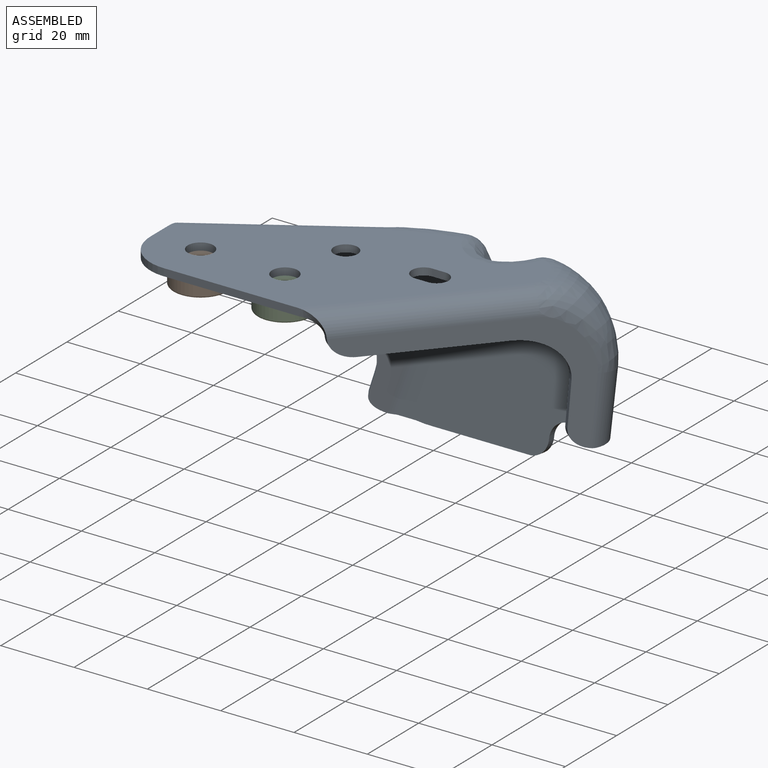
[diagram: assembled view]
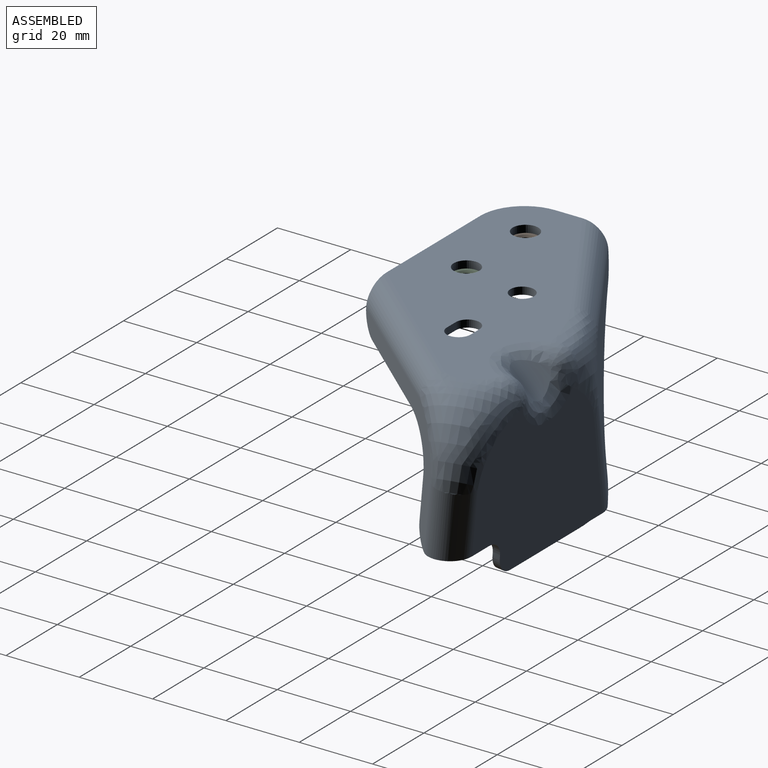
[diagram: assembled view, second angle]
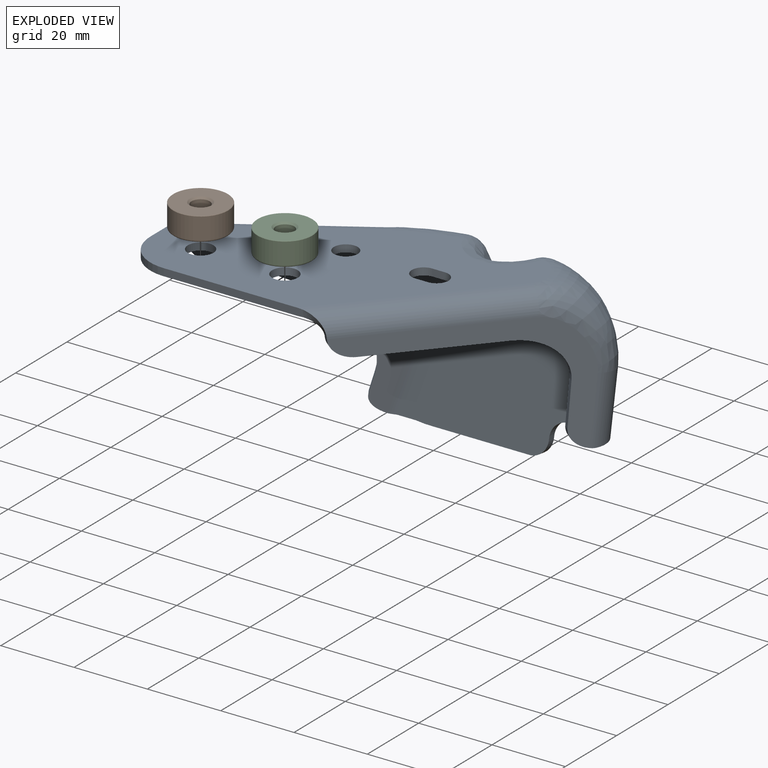
[diagram: exploded view]
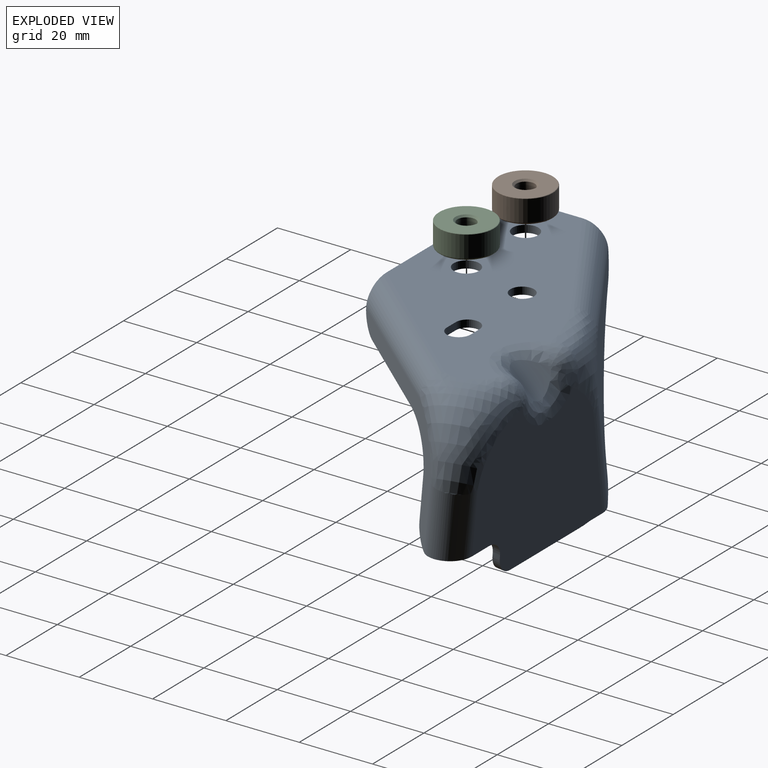
[diagram: exploded view, second angle]
ASSEMBLY  parts=3 mates=2
PART A: 73 faces, bbox 112.8x69.9x58.5 mm
  f0: cylinder r=1.72mm len=1.51mm, axis (-0.75,0.66,-0.07), area 0.1mm2, adj f1,f2,f3,f4
  f1: extruded ~6.31x6.2mm, area 18.6mm2, adj f0,f5,f6,f7
  f2: cylinder r=6mm len=44.8mm, axis (-0.66,-0.75,0), area 463.7mm2, adj f0,f4,f5,f8,f9
  f3: cylinder r=4mm len=43.49mm, axis (-0.66,-0.75,0), area 309.2mm2, adj f0,f4,f6,f10,f11
  f4: bspline ~7.94x5.77mm, area 18.8mm2, adj f0,f2,f3,f12
  f5: plane 48.33x43.21mm, normal (0.75,-0.66,0.05), area 441.9mm2, adj f1,f2,f7,f8,f13,f14,f15,f16
  f6: offset ~61.76x54.59mm, area 442.1mm2, adj f1,f3,f7,f10,f14,f15,f16,f57
  f7: plane 28.17x24.86mm, normal (0.04,-0.03,-1), area 71.2mm2, adj f1,f5,f6,f16
  f8: bspline ~28.09x24.04mm, area 585.8mm2, adj f2,f5,f9,f13,f32,f33
  f9: plane 86.9x53.99mm, normal (0,0,1), area 2458.5mm2, adj f2,f8,f12,f17,f20,f24,f25,f26
  f10: offset ~32.17x28.63mm, area 401.3mm2, adj f3,f6,f11,f19,f56,f57
  f11: plane 86.68x53.78mm, normal (0,0,-1), area 2458.8mm2, adj f3,f10,f12,f17,f18,f19,f20,f23
  f12: plane 36.61x2mm, normal (0,-1,0), area 73.2mm2, adj f4,f9,f11,f25
  f13: cylinder r=6mm len=18.98mm, axis (-0.04,-0.12,-0.99), area 242.3mm2, adj f5,f8,f32,f58,f59
  f14: extruded ~5.44x5.04mm, area 16.1mm2, adj f5,f6,f15,f58
  f15: plane 11.54x2.51mm, normal (-0.66,-0.75,0.09), area 23mm2, adj f5,f6,f14,f16
  f16: extruded ~11.31x11.15mm, area 39.3mm2, adj f5,f6,f7,f15
  f17: plane 3.5x2mm, normal (0,-1,0), area 7mm2, adj f9,f11,f20,f29
  f18: bspline ~10.45x9.14mm, area 43.1mm2, adj f11,f23,f52,f53
  f19: cylinder r=4mm len=4.49mm, axis (-1,0,0), area 0.4mm2, adj f10,f11,f22,f56
  f20: cylinder r=3.25mm len=6.5mm, axis (0,0,1), area 20.4mm2, adj f9,f11,f17,f30
  f21: offset ~15.79x15.79mm, area 48.2mm2, adj f23,f53,f55
  f22: sphere r=4mm, area 12.4mm2, adj f19,f23,f55
  f23: bspline ~10.93x9.96mm, area 47.6mm2, adj f11,f18,f21,f22
  f24: plane 7.42x2mm, normal (-1,0,0), area 14.8mm2, adj f9,f11,f25,f47
  f25: cylinder r=12mm len=12mm, axis (0,0,1), area 37.7mm2, adj f9,f11,f12,f24
  f26: cylinder r=3.5mm len=7mm, axis (0,0,-1), area 44mm2, adj f9,f11
  f27: cylinder r=3.5mm len=7mm, axis (0,0,-1), area 44mm2, adj f9,f11
  f28: cylinder r=3.25mm len=6.5mm, axis (0,0,-1), area 40.8mm2, adj f9,f11
  f29: cylinder r=3.25mm len=6.5mm, axis (0,0,1), area 20.4mm2, adj f9,f11,f17,f30
  f30: plane 3.5x2mm, normal (0,1,0), area 7mm2, adj f9,f11,f20,f29
  f31: bspline ~9.47x8.82mm, area 51.1mm2, adj f32,f35,f36,f41
  f32: plane 53.45x41.99mm, normal (0,0.99,-0.12), area 1651.8mm2, adj f8,f13,f31,f33,f35,f42,f43,f60
  f33: cylinder r=6mm len=6.73mm, axis (-1,0,0), area 0.5mm2, adj f8,f9,f32,f34
  f34: sphere r=6mm, area 34.8mm2, adj f33,f35,f37
  f35: bspline ~10.93x10.54mm, area 67.7mm2, adj f31,f32,f34,f36
  f36: cylinder r=7mm len=11.67mm, axis (0,0.71,-0.71), area 97mm2, adj f31,f35,f37,f38,f39,f41
  f37: bspline ~10.93x10.73mm, area 66.1mm2, adj f9,f34,f36,f38
  f38: bspline ~10.45x9.98mm, area 59.7mm2, adj f9,f36,f37,f39
  f39: bspline ~5.72x3.86mm, area 12.6mm2, adj f36,f38,f40,f42
  f40: bspline ~6.25x5.06mm, area 13.3mm2, adj f39,f41,f42
  f41: bspline ~6.62x6.41mm, area 29.3mm2, adj f31,f36,f40,f42
  f42: bspline ~27.07x25.34mm, area 366.7mm2, adj f9,f32,f39,f40,f41,f43,f44,f45
  f43: cylinder r=6mm len=29.05mm, axis (0.28,0.12,0.95), area 101.9mm2, adj f32,f42,f44,f66
  f44: plane 45.4x42.29mm, normal (-0.53,0.85,0.05), area 764.7mm2, adj f42,f43,f45,f69,f70,f71,f72
  f45: cylinder r=6mm len=42.91mm, axis (-0.85,-0.53,0), area 405.5mm2, adj f9,f42,f44,f46,f47
  f46: cylinder r=0.68mm len=1.69mm, axis (-0.53,0.85,0.06), area 0mm2, adj f45,f47,f48,f69
  f47: bspline ~7.06x5.78mm, area 17.2mm2, adj f24,f45,f46,f48
  f48: cylinder r=4mm len=41.85mm, axis (-0.85,-0.53,0), area 270.3mm2, adj f11,f46,f47,f49,f68
  f49: offset ~31.21x29.53mm, area 279.5mm2, adj f11,f48,f50,f51,f52,f56,f67,f68
  f50: bspline ~5.21x4.94mm, area 17.8mm2, adj f49,f51,f53,f54
  f51: offset ~10.21x9.16mm, area 5.2mm2, adj f49,f50,f52
  f52: bspline ~3.95x2.72mm, area 6.4mm2, adj f18,f49,f51,f53
  f53: offset ~15.66x15.66mm, area 62.1mm2, adj f18,f21,f50,f52,f54
  f54: bspline ~9.42x7.52mm, area 37.4mm2, adj f50,f53,f55,f56
  f55: bspline ~10.93x9.53mm, area 49.3mm2, adj f21,f22,f54,f56
  f56: offset ~67.97x54.3mm, area 1651.5mm2, adj f10,f19,f49,f54,f55,f57,f60,f61
  f57: cylinder r=4mm len=18.62mm, axis (-0.04,-0.12,-0.99), area 161.6mm2, adj f6,f10,f56,f58,f59
  f58: bspline ~2.42x2.23mm, area 2.7mm2, adj f13,f14,f57,f59
  f59: bspline ~8.65x6mm, area 20.3mm2, adj f13,f57,f58,f60
  f60: bspline ~6.79x1.99mm, area 13.6mm2, adj f32,f56,f59,f61
  f61: extruded ~5.24x5mm, area 15.8mm2, adj f32,f56,f60,f62
  f62: extruded ~5.24x5mm, area 15.8mm2, adj f32,f56,f61,f63
  f63: plane 26.23x1.99mm, normal (0,-0.12,-0.99), area 52.5mm2, adj f32,f56,f62,f64
  f64: extruded ~4.77x2.02mm, area 9.6mm2, adj f32,f56,f63,f65
  f65: plane 4.86x1.99mm, normal (0,-0.12,-0.99), area 9.7mm2, adj f32,f56,f64,f66
  f66: bspline ~3.37x2.66mm, area 6mm2, adj f43,f65,f67,f72
  f67: cylinder r=4mm len=28.7mm, axis (0.28,0.12,0.95), area 67.9mm2, adj f49,f56,f66,f68
  f68: offset ~60.33x54.75mm, area 750.9mm2, adj f48,f49,f67,f69,f70,f71,f72
  f69: extruded ~6.06x5.51mm, area 17.7mm2, adj f44,f46,f68,f70
  f70: extruded ~31.21x27.28mm, area 101.1mm2, adj f44,f68,f69,f71
  f71: plane 4.97x2.36mm, normal (-0.81,-0.52,0.27), area 10.1mm2, adj f44,f68,f70,f72
  f72: extruded ~4.96x4.65mm, area 14.3mm2, adj f44,f66,f68,f71
PART B: 14 faces, bbox 6.5x15x15 mm
  f0: revolved ~5.63x4.44mm, area 6.1mm2, adj f1,f3,f4
  f1: revolved ~5.63x4.44mm, area 6.1mm2, adj f0,f2,f4
  f2: cylinder r=2.5mm len=5.5mm, axis (1,0,0), area 43.2mm2, adj f1,f3,f6
  f3: cylinder r=2.5mm len=5.5mm, axis (1,0,0), area 43.2mm2, adj f0,f2,f7
  f4: plane 14.03x14.03mm, normal (-1,0,0), area 125.7mm2, adj f0,f1,f5,f8
  f5: revolved ~14.08x11.1mm, area 18.1mm2, adj f4,f8,f9
  f6: revolved ~5.63x4.44mm, area 6.1mm2, adj f2,f7,f10
  f7: revolved ~5.63x4.44mm, area 6.1mm2, adj f3,f6,f10
  f8: revolved ~14.08x11.1mm, area 18.1mm2, adj f4,f5,f11
  f9: cylinder r=7.5mm len=14.08mm, axis (-1,0,0), area 139mm2, adj f5,f11,f12
  f10: plane 14.83x14.83mm, normal (1,0,0), area 144.6mm2, adj f6,f7,f12,f13
  f11: cylinder r=7.5mm len=14.08mm, axis (-1,0,0), area 139mm2, adj f8,f9,f13
  f12: revolved ~14.08x11.1mm, area 3.3mm2, adj f9,f10,f13
  f13: revolved ~14.08x11.1mm, area 3.3mm2, adj f10,f11,f12
PART C: same geometry as B
PLACE A t=(-2490.54,498.63,-167.95)mm
PLACE B rot(axis=(0,-1,0),90deg) t=(-21.54,-11.37,13.55)mm
PLACE C rot(axis=(0,-1,0),90deg) t=(1.46,-11.37,13.53)mm
MATE cylindrical C.f2 <-> A.f27  axis (0,0,1) through (1.46,-11.37,7.53)mm
MATE cylindrical B.f2 <-> A.f26  axis (0,0,1) through (-21.54,-11.37,10.3)mm
